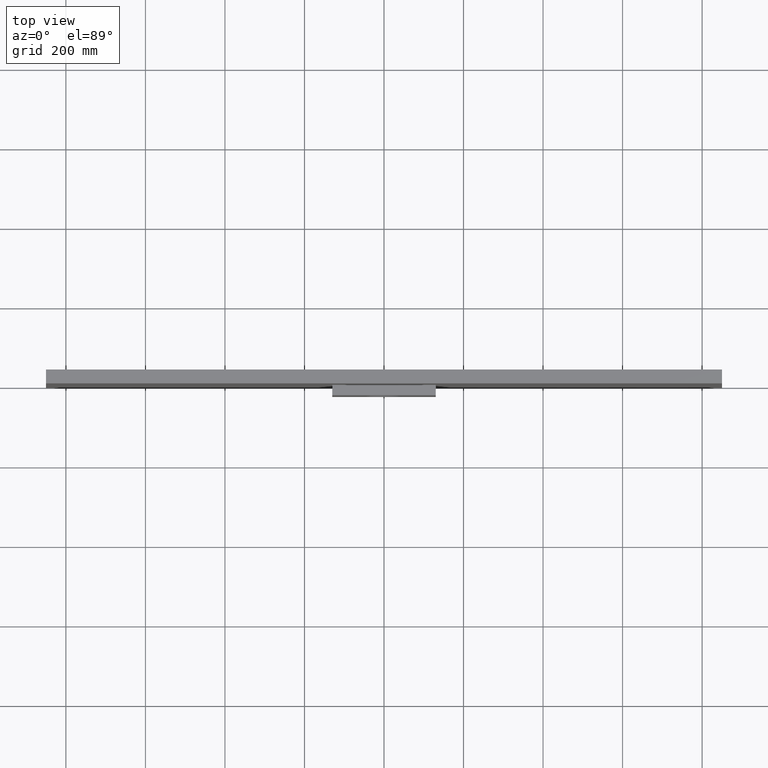
[diagram: clean part render]
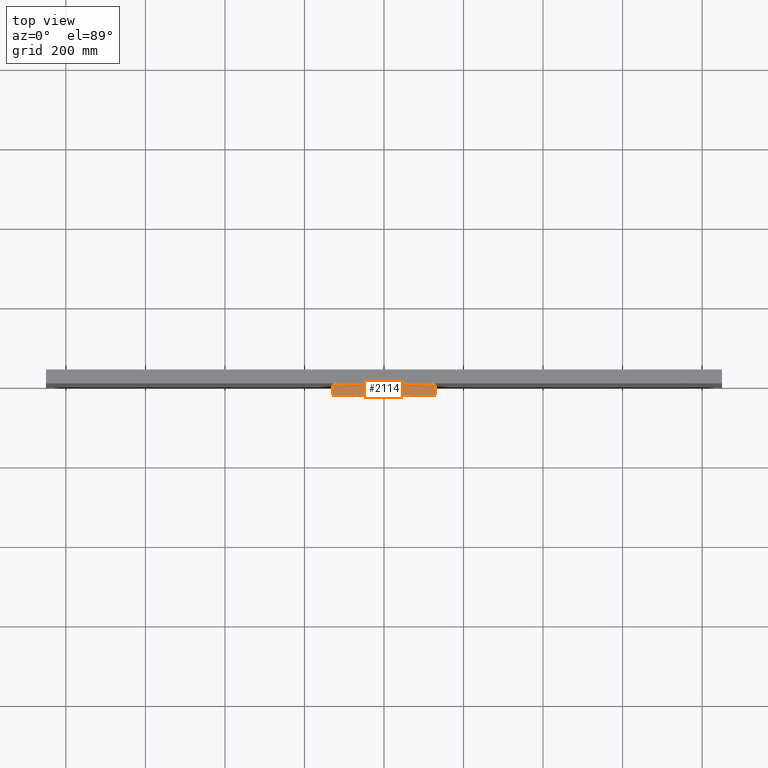
[diagram: same view with one face highlighted and labeled with its STEP entity id]
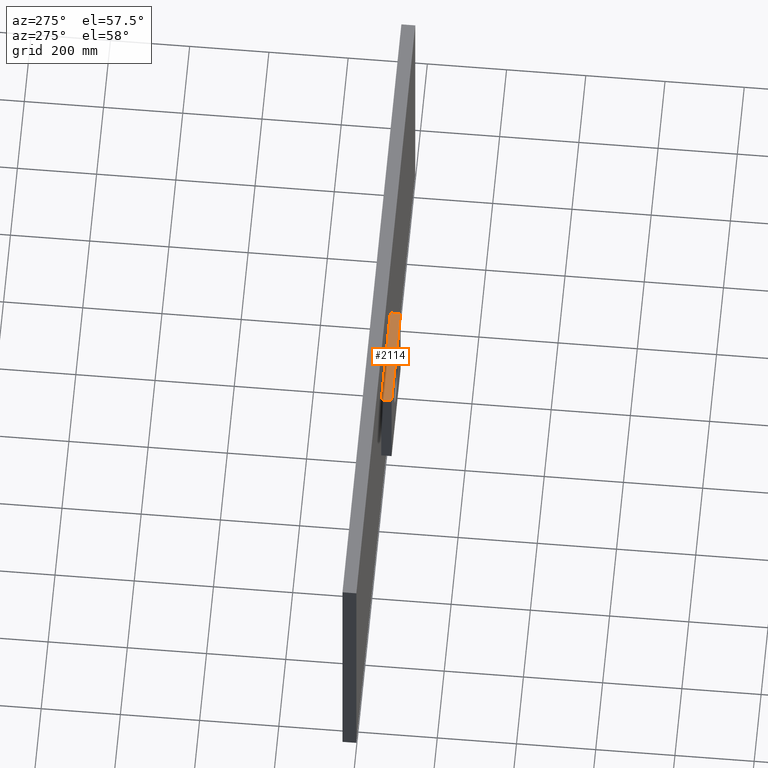
[diagram: same view with one face highlighted and labeled with its STEP entity id]
A machine part, top view. The second image highlights one B-rep face of the part: STEP entity #2114.
A second angle (auxiliary view) of the same face is appended — the face is thin or edge-on in the first view.
In plain terms, the highlighted planar face has unit normal (0, 0, -1).
Its self-contained STEP definition (entity closure, byte-faithful):
#9 = CARTESIAN_POINT ( 'NONE',  ( -130.0000000000001700, -26.00000000000000000, 129.9999999999999700 ) ) ;
#161 = AXIS2_PLACEMENT_3D ( 'NONE', #2918, #2698, #2690 ) ;
#232 = LINE ( 'NONE', #1376, #2717 ) ;
#350 = VERTEX_POINT ( 'NONE', #1370 ) ;
#632 = VERTEX_POINT ( 'NONE', #2324 ) ;
#1086 = EDGE_CURVE ( 'NONE', #350, #3051, #1709, .T. ) ;
#1091 = EDGE_CURVE ( 'NONE', #632, #3051, #1698, .T. ) ;
#1370 = CARTESIAN_POINT ( 'NONE',  ( -130.0000000000001700, -26.00000000000000000, 129.9999999999999700 ) ) ;
#1376 = CARTESIAN_POINT ( 'NONE',  ( 129.9999999999998000, -26.00000000000000000, 129.9999999999999700 ) ) ;
#1396 = DIRECTION ( 'NONE',  ( -0.0000000000000000000, 1.000000000000000000, -0.0000000000000000000 ) ) ;
#1647 = VECTOR ( 'NONE', #1847, 1000.000000000000000 ) ;
#1650 = ORIENTED_EDGE ( 'NONE', *, *, #1086, .F. ) ;
#1663 = VECTOR ( 'NONE', #2033, 1000.000000000000000 ) ;
#1698 = LINE ( 'NONE', #2236, #1647 ) ;
#1709 = LINE ( 'NONE', #9, #1663 ) ;
#1737 = EDGE_LOOP ( 'NONE', ( #2111, #1650, #2569, #2798 ) ) ;
#1847 = DIRECTION ( 'NONE',  ( -1.000000000000000000, -0.0000000000000000000, -0.0000000000000000000 ) ) ;
#2033 = DIRECTION ( 'NONE',  ( -0.0000000000000000000, 1.000000000000000000, -0.0000000000000000000 ) ) ;
#2111 = ORIENTED_EDGE ( 'NONE', *, *, #1091, .T. ) ;
#2114 = ADVANCED_FACE ( 'NONE', ( #2293 ), #2968, .F. ) ;
#2116 = DIRECTION ( 'NONE',  ( -1.000000000000000000, -0.0000000000000000000, -0.0000000000000000000 ) ) ;
#2128 = CARTESIAN_POINT ( 'NONE',  ( -130.0000000000001700, -26.00000000000000000, 129.9999999999999700 ) ) ;
#2236 = CARTESIAN_POINT ( 'NONE',  ( -130.0000000000001700, 0.0000000000000000000, 129.9999999999999700 ) ) ;
#2293 = FACE_OUTER_BOUND ( 'NONE', #1737, .T. ) ;
#2296 = CARTESIAN_POINT ( 'NONE',  ( -130.0000000000001700, 0.0000000000000000000, 129.9999999999999700 ) ) ;
#2324 = CARTESIAN_POINT ( 'NONE',  ( 129.9999999999998000, 0.0000000000000000000, 129.9999999999999700 ) ) ;
#2414 = LINE ( 'NONE', #2128, #2706 ) ;
#2535 = CARTESIAN_POINT ( 'NONE',  ( 129.9999999999998000, -26.00000000000000000, 129.9999999999999700 ) ) ;
#2569 = ORIENTED_EDGE ( 'NONE', *, *, #3058, .F. ) ;
#2690 = DIRECTION ( 'NONE',  ( -1.000000000000000000, 0.0000000000000000000, -0.0000000000000000000 ) ) ;
#2698 = DIRECTION ( 'NONE',  ( 0.0000000000000000000, 0.0000000000000000000, -1.000000000000000000 ) ) ;
#2706 = VECTOR ( 'NONE', #2116, 1000.000000000000000 ) ;
#2717 = VECTOR ( 'NONE', #1396, 1000.000000000000000 ) ;
#2798 = ORIENTED_EDGE ( 'NONE', *, *, #3144, .T. ) ;
#2918 = CARTESIAN_POINT ( 'NONE',  ( -130.0000000000001700, -26.00000000000000000, 129.9999999999999700 ) ) ;
#2964 = VERTEX_POINT ( 'NONE', #2535 ) ;
#2968 = PLANE ( 'NONE',  #161 ) ;
#3051 = VERTEX_POINT ( 'NONE', #2296 ) ;
#3058 = EDGE_CURVE ( 'NONE', #2964, #350, #2414, .T. ) ;
#3144 = EDGE_CURVE ( 'NONE', #2964, #632, #232, .T. ) ;